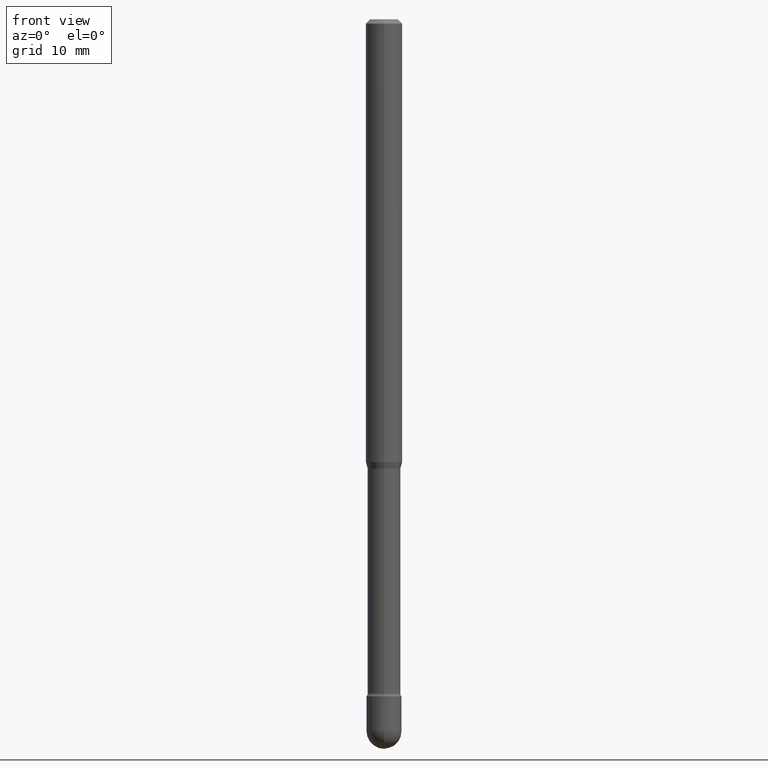
[diagram: clean part render]
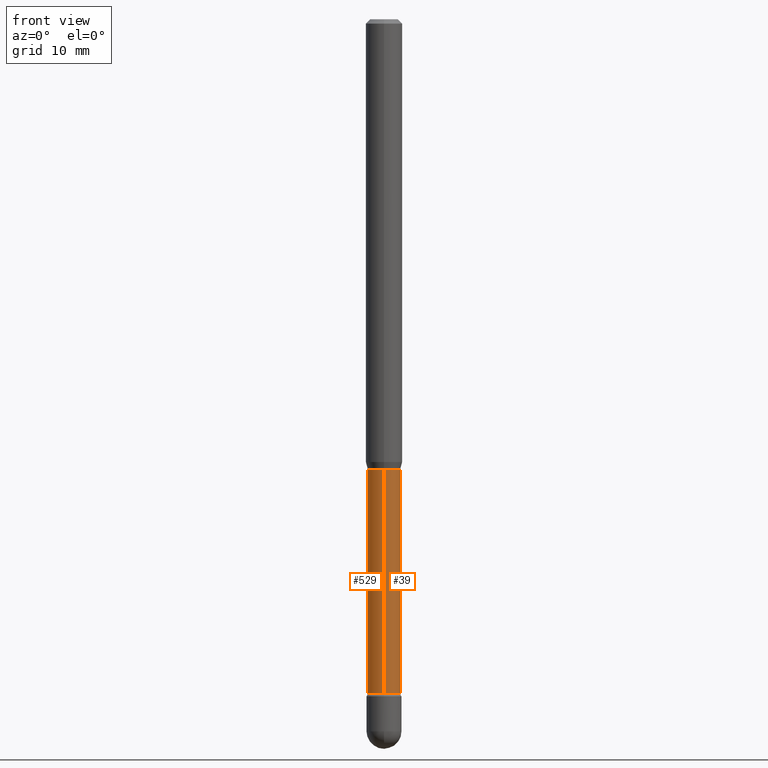
[diagram: same view with one multi-face feature highlighted, each face labeled with its STEP entity id]
A machine part, front view. The highlighted faces form ONE feature: a constant-radius fillet chain: 2 tangent blend faces with common blend radius 1.4326 mm. The faces share edges in the B-rep.
Their STEP definitions:
[1] entity #529 (Cylinder):
#8 = EDGE_CURVE ( 'NONE', #313, #351, #506, .T. ) ;
#30 = CARTESIAN_POINT ( 'NONE',  ( -3.938390950215054539E-16, -0.05640000000000001262, 6.749892085565846117E-16 ) ) ;
#35 = DIRECTION ( 'NONE',  ( -2.445515084970645769E-29, 3.491415064988271555E-15, 1.000000000000000000 ) ) ;
#46 = FACE_OUTER_BOUND ( 'NONE', #134, .T. ) ;
#55 = CARTESIAN_POINT ( 'NONE',  ( 4.135358722124351185E-16, 0.05639999999999198432, -2.310251153914437250 ) ) ;
#65 = EDGE_CURVE ( 'NONE', #346, #160, #99, .T. ) ;
#69 = DIRECTION ( 'NONE',  ( -2.445515084970645769E-29, 3.491415064988271555E-15, 1.000000000000000000 ) ) ;
#73 = CARTESIAN_POINT ( 'NONE',  ( 4.007461029687530474E-16, 0.05639999999999459335, -1.541974787463811225 ) ) ;
#87 = DIRECTION ( 'NONE',  ( -2.445515084970645769E-29, 3.491415064988271555E-15, 1.000000000000000000 ) ) ;
#92 = ORIENTED_EDGE ( 'NONE', *, *, #8, .F. ) ;
#96 = AXIS2_PLACEMENT_3D ( 'NONE', #363, #557, #110 ) ;
#99 = LINE ( 'NONE', #30, #375 ) ;
#103 = CIRCLE ( 'NONE', #239, 0.05639999999999997793 ) ;
#108 = CARTESIAN_POINT ( 'NONE',  ( 3.770922603387154700E-29, -5.383674002783237987E-15, -1.541974787463811003 ) ) ;
#110 = DIRECTION ( 'NONE',  ( -6.982962677686265133E-15, -1.000000000000000000, 4.843702116425993696E-15 ) ) ;
#134 = EDGE_LOOP ( 'NONE', ( #92, #181, #430, #275 ) ) ;
#159 = CARTESIAN_POINT ( 'NONE',  ( -3.938390950214674900E-16, -0.05640000000000536251, -1.541974787463810781 ) ) ;
#160 = VERTEX_POINT ( 'NONE', #159 ) ;
#181 = ORIENTED_EDGE ( 'NONE', *, *, #380, .T. ) ;
#216 = DIRECTION ( 'NONE',  ( -6.982962677686265133E-15, -1.000000000000000000, 3.491415064988270766E-15 ) ) ;
#217 = EDGE_CURVE ( 'NONE', #351, #160, #103, .T. ) ;
#223 = VECTOR ( 'NONE', #35, 39.37007874015748143 ) ;
#236 = CARTESIAN_POINT ( 'NONE',  ( 4.007461029686965452E-16, 0.05640000000000001262, 2.811575892259075641E-16 ) ) ;
#239 = AXIS2_PLACEMENT_3D ( 'NONE', #108, #280, #455 ) ;
#275 = ORIENTED_EDGE ( 'NONE', *, *, #217, .F. ) ;
#280 = DIRECTION ( 'NONE',  ( -2.445515084970645769E-29, 3.491415064988271555E-15, 1.000000000000000000 ) ) ;
#313 = VERTEX_POINT ( 'NONE', #55 ) ;
#346 = VERTEX_POINT ( 'NONE', #535 ) ;
#351 = VERTEX_POINT ( 'NONE', #73 ) ;
#363 = CARTESIAN_POINT ( 'NONE',  ( 5.649754046968597168E-29, -8.066045682683404419E-15, -2.310251153914436806 ) ) ;
#375 = VECTOR ( 'NONE', #69, 39.37007874015748143 ) ;
#377 = AXIS2_PLACEMENT_3D ( 'NONE', #473, #87, #216 ) ;
#380 = EDGE_CURVE ( 'NONE', #313, #346, #553, .T. ) ;
#430 = ORIENTED_EDGE ( 'NONE', *, *, #65, .T. ) ;
#455 = DIRECTION ( 'NONE',  ( -6.982962677686265133E-15, -1.000000000000000000, 4.843702116426000796E-15 ) ) ;
#473 = CARTESIAN_POINT ( 'NONE',  ( -1.169113584055446105E-44, 1.669184350826100908E-30, 4.780733988912460139E-16 ) ) ;
#476 = CYLINDRICAL_SURFACE ( 'NONE', #377, 0.05640000000000001262 ) ;
#506 = LINE ( 'NONE', #236, #223 ) ;
#529 = ADVANCED_FACE ( 'NONE', ( #46 ), #476, .T. ) ;
#535 = CARTESIAN_POINT ( 'NONE',  ( -3.938390950214492969E-16, -0.05640000000000812419, -2.310251153914436806 ) ) ;
#553 = CIRCLE ( 'NONE', #96, 0.05640000000000005426 ) ;
#557 = DIRECTION ( 'NONE',  ( -2.445515084970645769E-29, 3.491415064988271555E-15, 1.000000000000000000 ) ) ;
[2] entity #39 (Cylinder):
#4 = DIRECTION ( 'NONE',  ( -2.445515084970645769E-29, 3.491415064988271555E-15, 1.000000000000000000 ) ) ;
#8 = EDGE_CURVE ( 'NONE', #313, #351, #506, .T. ) ;
#11 = DIRECTION ( 'NONE',  ( -6.982962677686265133E-15, -1.000000000000000000, 4.843702116425993696E-15 ) ) ;
#30 = CARTESIAN_POINT ( 'NONE',  ( -3.938390950215054539E-16, -0.05640000000000001262, 6.749892085565846117E-16 ) ) ;
#35 = DIRECTION ( 'NONE',  ( -2.445515084970645769E-29, 3.491415064988271555E-15, 1.000000000000000000 ) ) ;
#39 = ADVANCED_FACE ( 'NONE', ( #543 ), #139, .T. ) ;
#55 = CARTESIAN_POINT ( 'NONE',  ( 4.135358722124351185E-16, 0.05639999999999198432, -2.310251153914437250 ) ) ;
#65 = EDGE_CURVE ( 'NONE', #346, #160, #99, .T. ) ;
#69 = DIRECTION ( 'NONE',  ( -2.445515084970645769E-29, 3.491415064988271555E-15, 1.000000000000000000 ) ) ;
#73 = CARTESIAN_POINT ( 'NONE',  ( 4.007461029687530474E-16, 0.05639999999999459335, -1.541974787463811225 ) ) ;
#79 = DIRECTION ( 'NONE',  ( -2.445515084970645769E-29, 3.491415064988271555E-15, 1.000000000000000000 ) ) ;
#95 = CIRCLE ( 'NONE', #163, 0.05640000000000005426 ) ;
#99 = LINE ( 'NONE', #30, #375 ) ;
#139 = CYLINDRICAL_SURFACE ( 'NONE', #292, 0.05640000000000001262 ) ;
#144 = ORIENTED_EDGE ( 'NONE', *, *, #174, .T. ) ;
#159 = CARTESIAN_POINT ( 'NONE',  ( -3.938390950214674900E-16, -0.05640000000000536251, -1.541974787463810781 ) ) ;
#160 = VERTEX_POINT ( 'NONE', #159 ) ;
#163 = AXIS2_PLACEMENT_3D ( 'NONE', #376, #4, #11 ) ;
#174 = EDGE_CURVE ( 'NONE', #346, #313, #95, .T. ) ;
#223 = VECTOR ( 'NONE', #35, 39.37007874015748143 ) ;
#236 = CARTESIAN_POINT ( 'NONE',  ( 4.007461029686965452E-16, 0.05640000000000001262, 2.811575892259075641E-16 ) ) ;
#240 = AXIS2_PLACEMENT_3D ( 'NONE', #403, #79, #288 ) ;
#288 = DIRECTION ( 'NONE',  ( -6.982962677686265133E-15, -1.000000000000000000, 4.843702116426000796E-15 ) ) ;
#292 = AXIS2_PLACEMENT_3D ( 'NONE', #311, #497, #358 ) ;
#309 = ORIENTED_EDGE ( 'NONE', *, *, #432, .F. ) ;
#311 = CARTESIAN_POINT ( 'NONE',  ( -1.169113584055446105E-44, 1.669184350826100908E-30, 4.780733988912460139E-16 ) ) ;
#313 = VERTEX_POINT ( 'NONE', #55 ) ;
#325 = EDGE_LOOP ( 'NONE', ( #144, #511, #309, #343 ) ) ;
#343 = ORIENTED_EDGE ( 'NONE', *, *, #65, .F. ) ;
#346 = VERTEX_POINT ( 'NONE', #535 ) ;
#351 = VERTEX_POINT ( 'NONE', #73 ) ;
#358 = DIRECTION ( 'NONE',  ( -6.982962677686265133E-15, -1.000000000000000000, 3.491415064988270766E-15 ) ) ;
#375 = VECTOR ( 'NONE', #69, 39.37007874015748143 ) ;
#376 = CARTESIAN_POINT ( 'NONE',  ( 5.649754046968597168E-29, -8.066045682683404419E-15, -2.310251153914436806 ) ) ;
#403 = CARTESIAN_POINT ( 'NONE',  ( 3.770922603387154700E-29, -5.383674002783237987E-15, -1.541974787463811003 ) ) ;
#432 = EDGE_CURVE ( 'NONE', #160, #351, #516, .T. ) ;
#497 = DIRECTION ( 'NONE',  ( -2.445515084970645769E-29, 3.491415064988271555E-15, 1.000000000000000000 ) ) ;
#506 = LINE ( 'NONE', #236, #223 ) ;
#511 = ORIENTED_EDGE ( 'NONE', *, *, #8, .T. ) ;
#516 = CIRCLE ( 'NONE', #240, 0.05639999999999997793 ) ;
#535 = CARTESIAN_POINT ( 'NONE',  ( -3.938390950214492969E-16, -0.05640000000000812419, -2.310251153914436806 ) ) ;
#543 = FACE_OUTER_BOUND ( 'NONE', #325, .T. ) ;